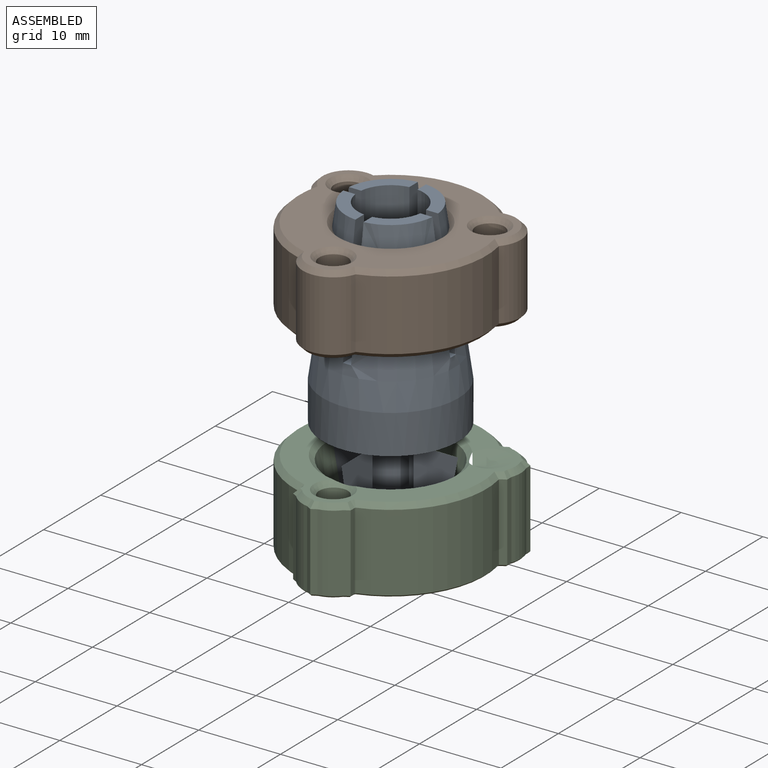
[diagram: assembled view]
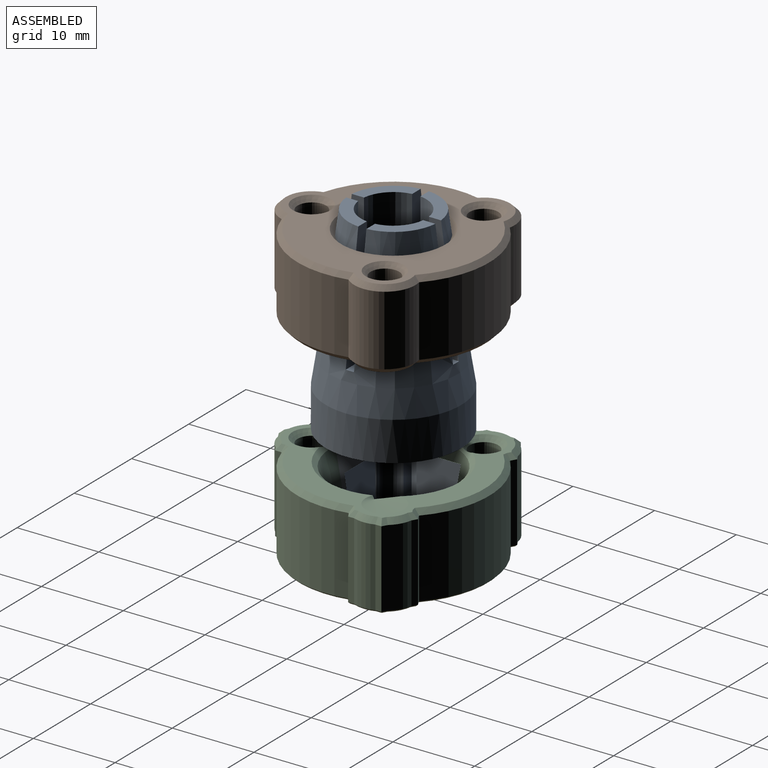
[diagram: assembled view, second angle]
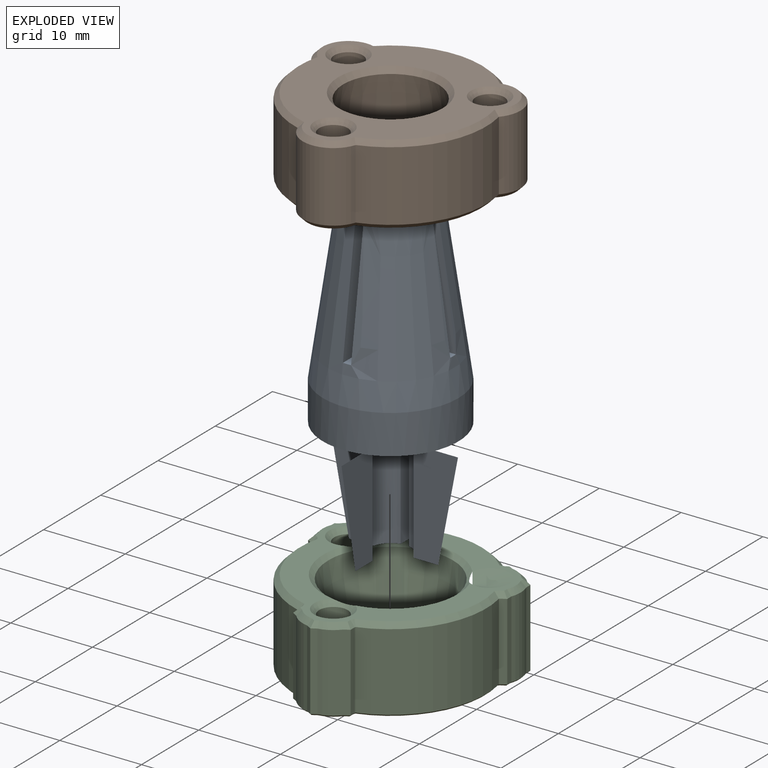
[diagram: exploded view]
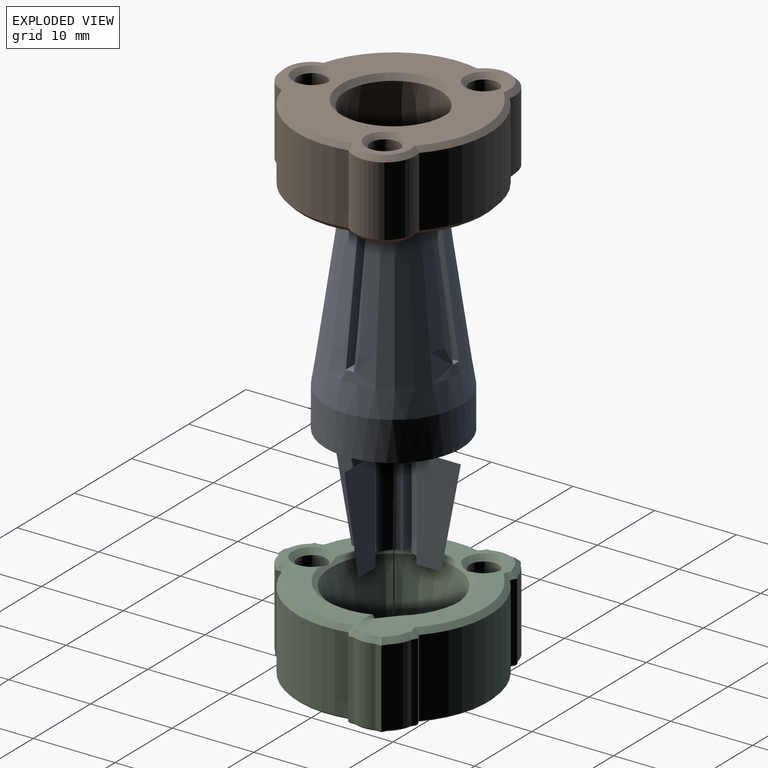
[diagram: exploded view, second angle]
ASSEMBLY  parts=3 mates=2
PART A: 40 faces, bbox 16.6x16.6x38.9 mm
  f0: plane 4.96x4.96mm, normal (0,0,-1), area 15.7mm2, adj f4,f5,f32,f38
  f1: plane 4.96x4.96mm, normal (0,0,-1), area 15.7mm2, adj f4,f5,f31,f35
  f2: plane 4.96x4.96mm, normal (0,0,-1), area 15.7mm2, adj f4,f5,f28,f37
  f3: plane 4.96x4.96mm, normal (0,0,-1), area 15.7mm2, adj f4,f5,f29,f34
  f4: cone r=8.3mm half-angle=10.9deg, axis (0,0,1), area 55.8mm2, adj f0,f1,f2,f3,f11,f28,f29,f30
  f5: cylinder r=2.5mm len=14.41mm, axis (0,0,-1), area 175.9mm2, adj f0,f1,f2,f3,f15,f28,f29,f30
  f6: cone r=5.48mm half-angle=8.2deg, axis (0,0,-1), area 789.9mm2, adj f7,f8,f9,f10,f11,f16,f17,f18
  f7: plane 4.96x4.96mm, normal (0,0,1), area 9.6mm2, adj f6,f12,f16,f25
  f8: plane 4.96x4.96mm, normal (0,0,1), area 9.6mm2, adj f6,f12,f17,f23
  f9: plane 4.96x4.96mm, normal (0,0,1), area 9.6mm2, adj f6,f12,f20,f26
  f10: plane 4.96x4.96mm, normal (0,0,1), area 9.6mm2, adj f6,f12,f19,f24
  f11: cylinder r=8.3mm len=16.6mm, axis (0,0,-1), area 249.6mm2, adj f4,f6
  f12: cylinder r=4mm len=19.47mm, axis (0,0,-1), area 429.1mm2, adj f7,f8,f9,f10,f13,f16,f17,f18
  f13: plane 8x8mm, normal (0,0,1), area 49.5mm2, adj f12,f14
  f14: cylinder r=0.5mm len=5mm, axis (0,0,-1), area 15.7mm2, adj f13,f15
  f15: plane 5x5mm, normal (0,0,-1), area 18.8mm2, adj f5,f14
  f16: plane 15.03x3.7mm, normal (0,1,0), area 38.7mm2, adj f6,f7,f12,f18
  f17: plane 15.03x3.7mm, normal (0,-1,0), area 38.7mm2, adj f6,f8,f12,f18
  f18: plane 3.69x1mm, normal (0,0,1), area 3.7mm2, adj f6,f12,f16,f17
  f19: plane 15.03x3.7mm, normal (0,-1,0), area 38.7mm2, adj f6,f10,f12,f21
  f20: plane 15.03x3.7mm, normal (0,1,0), area 38.7mm2, adj f6,f9,f12,f21
  f21: plane 3.69x1mm, normal (0,0,1), area 3.7mm2, adj f6,f12,f19,f20
  f22: plane 3.69x1mm, normal (0,0,1), area 3.7mm2, adj f6,f12,f23,f24
  f23: plane 15.03x3.7mm, normal (1,0,0), area 38.7mm2, adj f6,f8,f12,f22
  f24: plane 15.03x3.7mm, normal (-1,0,0), area 38.7mm2, adj f6,f10,f12,f22
  f25: plane 15.03x3.7mm, normal (1,0,0), area 38.7mm2, adj f6,f7,f12,f27
  f26: plane 15.03x3.7mm, normal (-1,0,0), area 38.7mm2, adj f6,f9,f12,f27
  f27: plane 3.69x1mm, normal (0,0,1), area 3.7mm2, adj f6,f12,f25,f26
  f28: plane 12.58x5.47mm, normal (-1,0,0), area 53mm2, adj f2,f4,f5,f30
  f29: plane 12.58x5.47mm, normal (1,0,0), area 53mm2, adj f3,f4,f5,f30
  f30: plane 5.45x1mm, normal (0,0,-1), area 5.4mm2, adj f4,f5,f28,f29
  f31: plane 12.58x5.47mm, normal (1,0,0), area 53mm2, adj f1,f4,f5,f33
  f32: plane 12.58x5.47mm, normal (-1,0,0), area 53mm2, adj f0,f4,f5,f33
  f33: plane 5.45x1mm, normal (0,0,-1), area 5.4mm2, adj f4,f5,f31,f32
  f34: plane 12.58x5.47mm, normal (0,1,0), area 53mm2, adj f3,f4,f5,f36
  f35: plane 12.58x5.47mm, normal (0,-1,0), area 53mm2, adj f1,f4,f5,f36
  f36: plane 5.45x1mm, normal (0,0,-1), area 5.4mm2, adj f4,f5,f34,f35
  f37: plane 12.58x5.47mm, normal (0,1,0), area 53mm2, adj f2,f4,f5,f39
  f38: plane 12.58x5.47mm, normal (0,-1,0), area 53mm2, adj f0,f4,f5,f39
  f39: plane 15.8x15.8mm, normal (0,0,-1), area 190.6mm2, adj f4,f5,f37,f38
PART B: 32 faces, bbox 24.8x25.5x9.7 mm
  f0: plane 24.34x23.67mm, normal (0,0,1), area 240.2mm2, adj f12,f13,f14,f15,f16,f17,f18,f19
  f1: cylinder r=11.75mm len=13.71mm, axis (0,0,-1), area 149.1mm2, adj f6,f10,f16,f26
  f2: cylinder r=11.75mm len=15.84mm, axis (0,0,-1), area 149.1mm2, adj f8,f10,f20,f30
  f3: plane 24.34x23.67mm, normal (0,0,-1), area 185.4mm2, adj f22,f23,f24,f25,f26,f27,f28,f29
  f4: cylinder r=11.75mm len=13.71mm, axis (0,0,-1), area 149.1mm2, adj f6,f8,f17,f27
  f5: cone r=7.14mm half-angle=8.2deg, axis (0,0,-1), area 351.4mm2, adj f21,f31
  f6: cylinder r=3.75mm len=8.58mm, axis (0,0,1), area 80.2mm2, adj f1,f4,f15,f25
  f7: cylinder r=1.75mm len=8.58mm, axis (0,0,1), area 94.3mm2, adj f14,f24
  f8: cylinder r=3.75mm len=8.58mm, axis (0,0,1), area 80.2mm2, adj f2,f4,f19,f29
  f9: cylinder r=1.75mm len=8.58mm, axis (0,0,1), area 94.3mm2, adj f13,f23
  f10: cylinder r=3.75mm len=8.58mm, axis (0,0,1), area 80.2mm2, adj f1,f2,f18,f28
  f11: cylinder r=1.75mm len=8.58mm, axis (0,0,1), area 94.3mm2, adj f12,f22
  f12: cone r=1.75mm half-angle=45deg, axis (0,0,1), area 10.5mm2, adj f0,f11
  f13: cone r=1.75mm half-angle=45deg, axis (0,0,1), area 10.5mm2, adj f0,f9
  f14: cone r=1.75mm half-angle=45deg, axis (0,0,1), area 10.5mm2, adj f0,f7
  f15: cone r=3.17mm half-angle=45deg, axis (0,0,-1), area 7.3mm2, adj f0,f6,f16,f17
  f16: cone r=11.75mm half-angle=45deg, axis (0,0,-1), area 14.1mm2, adj f0,f1,f15,f18
  f17: cone r=11.75mm half-angle=45deg, axis (0,0,-1), area 14.1mm2, adj f0,f4,f15,f19
  f18: cone r=3.17mm half-angle=45deg, axis (0,0,-1), area 7.3mm2, adj f0,f10,f16,f20
  f19: cone r=3.17mm half-angle=45deg, axis (0,0,-1), area 7.3mm2, adj f0,f8,f17,f20
  f20: cone r=11.75mm half-angle=45deg, axis (0,0,-1), area 14.1mm2, adj f0,f2,f18,f19
  f21: cone r=6.4mm half-angle=40.9deg, axis (0,0,1), area 33.6mm2, adj f0,f5
  f22: cone r=1.75mm half-angle=45deg, axis (0,0,-1), area 10.5mm2, adj f3,f11
  f23: cone r=1.75mm half-angle=45deg, axis (0,0,-1), area 10.5mm2, adj f3,f9
  f24: cone r=1.75mm half-angle=45deg, axis (0,0,-1), area 10.5mm2, adj f3,f7
  f25: cone r=3.17mm half-angle=45deg, axis (0,0,1), area 7.3mm2, adj f3,f6,f26,f27
  f26: cone r=11.17mm half-angle=45deg, axis (0,0,1), area 14.1mm2, adj f1,f3,f25,f28
  f27: cone r=11.17mm half-angle=45deg, axis (0,0,1), area 14.1mm2, adj f3,f4,f25,f29
  f28: cone r=3.17mm half-angle=45deg, axis (0,0,1), area 7.3mm2, adj f3,f10,f26,f30
  f29: cone r=3.17mm half-angle=45deg, axis (0,0,1), area 7.3mm2, adj f3,f8,f27,f30
  f30: cone r=11.17mm half-angle=45deg, axis (0,0,1), area 14.1mm2, adj f2,f3,f28,f29
  f31: cone r=7.07mm half-angle=49.1deg, axis (0,0,-1), area 35mm2, adj f3,f5
PART C: 155 faces, bbox 24.8x25.8x10.3 mm
  f0: cylinder r=1.75mm len=3.5mm, axis (0,0,-1), area 23.9mm2, adj f145,f152
  f1: cylinder r=1.75mm len=3.5mm, axis (0,0,-1), area 23.9mm2, adj f146,f154
  f2: cylinder r=1.75mm len=3.5mm, axis (0,0,-1), area 23.9mm2, adj f148,f150
  f3: plane 25.36x24.41mm, normal (0,0,-1), area 243.8mm2, adj f60,f61,f62,f63,f64,f65,f66,f67
  f4: cylinder r=3.75mm len=9.47mm, axis (0,0,-1), area 25.2mm2, adj f40,f45,f83,f122
  f5: cylinder r=3.75mm len=9.47mm, axis (0,0,-1), area 1.1mm2, adj f13,f42,f95,f134
  f6: cylinder r=3.75mm len=9.47mm, axis (0,0,-1), area 25.2mm2, adj f41,f43,f89,f128
  f7: cylinder r=3.75mm len=9.47mm, axis (0,0,-1), area 25.2mm2, adj f34,f39,f104,f144
  f8: cylinder r=3.75mm len=9.47mm, axis (0,0,-1), area 1.1mm2, adj f14,f36,f92,f133
  f9: cylinder r=3.75mm len=9.47mm, axis (0,0,-1), area 25.2mm2, adj f35,f37,f98,f139
  f10: cylinder r=3.75mm len=9.47mm, axis (0,0,-1), area 1.1mm2, adj f15,f25,f73,f112
  f11: cylinder r=3.75mm len=9.47mm, axis (0,0,-1), area 25.2mm2, adj f23,f26,f76,f117
  f12: cylinder r=3.75mm len=9.47mm, axis (0,0,-1), area 25.2mm2, adj f21,f24,f82,f123
  f13: cylinder r=11.75mm len=13.71mm, axis (0,0,-1), area 164.5mm2, adj f5,f20,f97,f136
  f14: cylinder r=11.75mm len=13.71mm, axis (0,0,-1), area 164.5mm2, adj f8,f19,f90,f131
  f15: cylinder r=11.75mm len=15.84mm, axis (0,0,-1), area 164.5mm2, adj f10,f18,f75,f114
  f16: plane 24.5x23.61mm, normal (0,0,1), area 157.5mm2, adj f112,f113,f114,f115,f116,f117,f118,f119
  f17: cone r=5.74mm half-angle=10.9deg, axis (0,0,1), area 409.3mm2, adj f111,f147
  f18: cylinder r=3.75mm len=9.47mm, axis (0,0,-1), area 1.1mm2, adj f15,f44,f77,f116
  f19: cylinder r=3.75mm len=9.47mm, axis (0,0,-1), area 1.1mm2, adj f14,f22,f88,f129
  f20: cylinder r=3.75mm len=9.47mm, axis (0,0,-1), area 1.1mm2, adj f13,f38,f99,f138
  f21: plane 9.47x0.73mm, normal (1,0,0), area 6.9mm2, adj f12,f22,f84,f125
  f22: plane 9.47x0.63mm, normal (0.5,-0.87,0), area 6.9mm2, adj f19,f21,f86,f127
  f23: plane 9.47x0.63mm, normal (0.5,0.87,0), area 6.9mm2, adj f11,f24,f78,f119
  f24: plane 9.47x0.73mm, normal (1,0,0), area 6.9mm2, adj f12,f23,f80,f121
  f25: plane 9.47x0.63mm, normal (-0.5,0.87,0), area 6.9mm2, adj f10,f26,f72,f113
  f26: plane 9.47x0.63mm, normal (0.5,0.87,0), area 6.9mm2, adj f11,f25,f74,f115
  f27: plane 2.8x2.29mm, normal (0.5,-0.87,0), area 7.4mm2, adj f28,f32,f33,f110
  f28: plane 2.8x2.29mm, normal (-0.5,-0.87,0), area 7.4mm2, adj f27,f29,f33,f108
  f29: plane 3.23x2.29mm, normal (-1,0,0), area 7.4mm2, adj f28,f30,f33,f106
  f30: plane 2.8x2.29mm, normal (-0.5,0.87,0), area 7.4mm2, adj f29,f31,f33,f105
  f31: plane 2.8x2.29mm, normal (0.5,0.87,0), area 7.4mm2, adj f30,f32,f33,f107
  f32: plane 3.23x2.29mm, normal (1,0,0), area 7.4mm2, adj f27,f31,f33,f109
  f33: plane 6.47x5.6mm, normal (0,0,-1), area 7.5mm2, adj f27,f28,f29,f30,f31,f32,f153
  f34: plane 9.47x0.63mm, normal (-0.5,-0.87,0), area 6.9mm2, adj f7,f35,f102,f143
  f35: plane 9.47x0.63mm, normal (0.5,-0.87,0), area 6.9mm2, adj f9,f34,f100,f141
  f36: plane 9.47x0.73mm, normal (1,0,0), area 6.9mm2, adj f8,f37,f94,f135
  f37: plane 9.47x0.63mm, normal (0.5,-0.87,0), area 6.9mm2, adj f9,f36,f96,f137
  f38: plane 9.47x0.73mm, normal (-1,0,0), area 6.9mm2, adj f20,f39,f101,f140
  f39: plane 9.47x0.63mm, normal (-0.5,-0.87,0), area 6.9mm2, adj f7,f38,f103,f142
  f40: plane 9.47x0.63mm, normal (-0.5,0.87,0), area 6.9mm2, adj f4,f41,f85,f124
  f41: plane 9.47x0.73mm, normal (-1,0,0), area 6.9mm2, adj f6,f40,f87,f126
  f42: plane 9.47x0.63mm, normal (-0.5,-0.87,0), area 6.9mm2, adj f5,f43,f93,f132
  f43: plane 9.47x0.73mm, normal (-1,0,0), area 6.9mm2, adj f6,f42,f91,f130
  f44: plane 9.47x0.63mm, normal (0.5,0.87,0), area 6.9mm2, adj f18,f45,f79,f118
  f45: plane 9.47x0.63mm, normal (-0.5,0.87,0), area 6.9mm2, adj f4,f44,f81,f120
  f46: plane 2.8x2.29mm, normal (0.5,-0.87,0), area 7.4mm2, adj f47,f51,f52,f65
  f47: plane 2.8x2.29mm, normal (-0.5,-0.87,0), area 7.4mm2, adj f46,f48,f52,f63
  f48: plane 3.23x2.29mm, normal (-1,0,0), area 7.4mm2, adj f47,f49,f52,f61
  f49: plane 2.8x2.29mm, normal (-0.5,0.87,0), area 7.4mm2, adj f48,f50,f52,f60
  f50: plane 2.8x2.29mm, normal (0.5,0.87,0), area 7.4mm2, adj f49,f51,f52,f62
  f51: plane 3.23x2.29mm, normal (1,0,0), area 7.4mm2, adj f46,f50,f52,f64
  f52: plane 6.47x5.6mm, normal (0,0,-1), area 7.5mm2, adj f46,f47,f48,f49,f50,f51,f151
  f53: plane 2.8x2.29mm, normal (0.5,0.87,0), area 7.4mm2, adj f54,f58,f59,f71
  f54: plane 3.23x2.29mm, normal (1,0,0), area 7.4mm2, adj f53,f55,f59,f69
  f55: plane 2.8x2.29mm, normal (0.5,-0.87,0), area 7.4mm2, adj f54,f56,f59,f67
  f56: plane 2.8x2.29mm, normal (-0.5,-0.87,0), area 7.4mm2, adj f55,f57,f59,f66
  f57: plane 3.23x2.29mm, normal (-1,0,0), area 7.4mm2, adj f56,f58,f59,f68
  f58: plane 2.8x2.29mm, normal (-0.5,0.87,0), area 7.4mm2, adj f53,f57,f59,f70
  f59: plane 6.47x5.6mm, normal (0,0,-1), area 7.5mm2, adj f53,f54,f55,f56,f57,f58,f149
  f60: plane 3.01x1.86mm, normal (-0.35,0.61,-0.71), area 1mm2, adj f3,f49,f61,f62
  f61: plane 3.47x0.21mm, normal (-0.71,0,-0.71), area 1mm2, adj f3,f48,f60,f63
  f62: plane 3.01x1.86mm, normal (0.35,0.61,-0.71), area 1mm2, adj f3,f50,f60,f64
  f63: plane 3.01x1.86mm, normal (-0.35,-0.61,-0.71), area 1mm2, adj f3,f47,f61,f65
  f64: plane 3.47x0.21mm, normal (0.71,0,-0.71), area 1mm2, adj f3,f51,f62,f65
  f65: plane 3.01x1.86mm, normal (0.35,-0.61,-0.71), area 1mm2, adj f3,f46,f63,f64
  f66: plane 3.01x1.86mm, normal (-0.35,-0.61,-0.71), area 1mm2, adj f3,f56,f67,f68
  f67: plane 3.01x1.86mm, normal (0.35,-0.61,-0.71), area 1mm2, adj f3,f55,f66,f69
  f68: plane 3.47x0.21mm, normal (-0.71,0,-0.71), area 1mm2, adj f3,f57,f66,f70
  f69: plane 3.47x0.21mm, normal (0.71,0,-0.71), area 1mm2, adj f3,f54,f67,f71
  f70: plane 3.01x1.86mm, normal (-0.35,0.61,-0.71), area 1mm2, adj f3,f58,f68,f71
  f71: plane 3.01x1.86mm, normal (0.35,0.61,-0.71), area 1mm2, adj f3,f53,f69,f70
  f72: plane 0.63x0.56mm, normal (-0.35,0.61,-0.71), area 0.2mm2, adj f3,f25,f73,f74
  f73: cone r=3.54mm half-angle=45deg, axis (0,0,1), area 0.1mm2, adj f3,f10,f72,f75
  f74: plane 0.63x0.56mm, normal (0.35,0.61,-0.71), area 0.2mm2, adj f3,f26,f72,f76
  f75: cone r=11.54mm half-angle=45deg, axis (0,0,1), area 5.1mm2, adj f3,f15,f73,f77
  f76: cone r=3.54mm half-angle=45deg, axis (0,0,1), area 0.8mm2, adj f3,f11,f74,f78
  f77: cone r=3.54mm half-angle=45deg, axis (0,0,1), area 0.1mm2, adj f3,f18,f75,f79
  f78: plane 0.76x0.48mm, normal (0.35,0.61,-0.71), area 0.2mm2, adj f3,f23,f76,f80
  f79: plane 0.63x0.56mm, normal (0.35,0.61,-0.71), area 0.2mm2, adj f3,f44,f77,f81
  f80: plane 0.76x0.21mm, normal (0.71,0,-0.71), area 0.2mm2, adj f3,f24,f78,f82
  f81: plane 0.63x0.56mm, normal (-0.35,0.61,-0.71), area 0.2mm2, adj f3,f45,f79,f83
  f82: cone r=3.54mm half-angle=45deg, axis (0,0,1), area 0.8mm2, adj f3,f12,f80,f84
  f83: cone r=3.54mm half-angle=45deg, axis (0,0,1), area 0.8mm2, adj f3,f4,f81,f85
  f84: plane 0.76x0.21mm, normal (0.71,0,-0.71), area 0.2mm2, adj f3,f21,f82,f86
  f85: plane 0.76x0.48mm, normal (-0.35,0.61,-0.71), area 0.2mm2, adj f3,f40,f83,f87
  f86: plane 0.76x0.48mm, normal (0.35,-0.61,-0.71), area 0.2mm2, adj f3,f22,f84,f88
  f87: plane 0.76x0.21mm, normal (-0.71,0,-0.71), area 0.2mm2, adj f3,f41,f85,f89
  f88: cone r=3.54mm half-angle=45deg, axis (0,0,1), area 0.1mm2, adj f3,f19,f86,f90
  f89: cone r=3.54mm half-angle=45deg, axis (0,0,1), area 0.8mm2, adj f3,f6,f87,f91
  f90: cone r=11.54mm half-angle=45deg, axis (0,0,1), area 5.1mm2, adj f3,f14,f88,f92
  f91: plane 0.76x0.21mm, normal (-0.71,0,-0.71), area 0.2mm2, adj f3,f43,f89,f93
  f92: cone r=3.54mm half-angle=45deg, axis (0,0,1), area 0.1mm2, adj f3,f8,f90,f94
  f93: plane 0.76x0.48mm, normal (-0.35,-0.61,-0.71), area 0.2mm2, adj f3,f42,f91,f95
  f94: plane 0.76x0.21mm, normal (0.71,0,-0.71), area 0.2mm2, adj f3,f36,f92,f96
  f95: cone r=3.54mm half-angle=45deg, axis (0,0,1), area 0.1mm2, adj f3,f5,f93,f97
  f96: plane 0.76x0.48mm, normal (0.35,-0.61,-0.71), area 0.2mm2, adj f3,f37,f94,f98
  f97: cone r=11.54mm half-angle=45deg, axis (0,0,1), area 5.1mm2, adj f3,f13,f95,f99
  f98: cone r=3.54mm half-angle=45deg, axis (0,0,1), area 0.8mm2, adj f3,f9,f96,f100
  f99: cone r=3.54mm half-angle=45deg, axis (0,0,1), area 0.1mm2, adj f3,f20,f97,f101
  f100: plane 0.63x0.56mm, normal (0.35,-0.61,-0.71), area 0.2mm2, adj f3,f35,f98,f102
  f101: plane 0.76x0.21mm, normal (-0.71,0,-0.71), area 0.2mm2, adj f3,f38,f99,f103
  f102: plane 0.63x0.56mm, normal (-0.35,-0.61,-0.71), area 0.2mm2, adj f3,f34,f100,f104
  f103: plane 0.76x0.48mm, normal (-0.35,-0.61,-0.71), area 0.2mm2, adj f3,f39,f101,f104
  f104: cone r=3.54mm half-angle=45deg, axis (0,0,1), area 0.8mm2, adj f3,f7,f102,f103
  f105: plane 3.01x1.86mm, normal (-0.35,0.61,-0.71), area 1mm2, adj f3,f30,f106,f107
  f106: plane 3.47x0.21mm, normal (-0.71,0,-0.71), area 1mm2, adj f3,f29,f105,f108
  f107: plane 3.01x1.86mm, normal (0.35,0.61,-0.71), area 1mm2, adj f3,f31,f105,f109
  f108: plane 3.01x1.86mm, normal (-0.35,-0.61,-0.71), area 1mm2, adj f3,f28,f106,f110
  f109: plane 3.47x0.21mm, normal (0.71,0,-0.71), area 1mm2, adj f3,f32,f107,f110
  f110: plane 3.01x1.86mm, normal (0.35,-0.61,-0.71), area 1mm2, adj f3,f27,f108,f109
  f111: cone r=5.78mm half-angle=39.5deg, axis (0,0,-1), area 11.8mm2, adj f3,f17
  f112: cone r=3.14mm half-angle=45deg, axis (0,0,-1), area 0.3mm2, adj f10,f16,f113,f114
  f113: plane 0.95x0.64mm, normal (-0.35,0.61,0.71), area 0.5mm2, adj f16,f25,f112,f115
  f114: cone r=11.75mm half-angle=45deg, axis (0,0,-1), area 14.8mm2, adj f15,f16,f112,f116
  f115: plane 0.95x0.64mm, normal (0.35,0.61,0.71), area 0.5mm2, adj f16,f26,f113,f117
  f116: cone r=3.14mm half-angle=45deg, axis (0,0,-1), area 0.3mm2, adj f16,f18,f114,f118
  f117: cone r=3.14mm half-angle=45deg, axis (0,0,-1), area 2.2mm2, adj f11,f16,f115,f119
  f118: plane 0.95x0.64mm, normal (0.35,0.61,0.71), area 0.5mm2, adj f16,f44,f116,f120
  f119: plane 1.04x0.72mm, normal (0.35,0.61,0.71), area 0.5mm2, adj f16,f23,f117,f121
  f120: plane 0.95x0.64mm, normal (-0.35,0.61,0.71), area 0.5mm2, adj f16,f45,f118,f122
  f121: plane 0.85x0.61mm, normal (0.71,0,0.71), area 0.5mm2, adj f16,f24,f119,f123
  f122: cone r=3.14mm half-angle=45deg, axis (0,0,-1), area 2.2mm2, adj f4,f16,f120,f124
  f123: cone r=3.14mm half-angle=45deg, axis (0,0,-1), area 2.2mm2, adj f12,f16,f121,f125
  f124: plane 1.04x0.72mm, normal (-0.35,0.61,0.71), area 0.5mm2, adj f16,f40,f122,f126
  f125: plane 0.85x0.61mm, normal (0.71,0,0.71), area 0.5mm2, adj f16,f21,f123,f127
  f126: plane 0.85x0.61mm, normal (-0.71,0,0.71), area 0.5mm2, adj f16,f41,f124,f128
  f127: plane 1.04x0.72mm, normal (0.35,-0.61,0.71), area 0.5mm2, adj f16,f22,f125,f129
  f128: cone r=3.14mm half-angle=45deg, axis (0,0,-1), area 2.2mm2, adj f6,f16,f126,f130
  f129: cone r=3.14mm half-angle=45deg, axis (0,0,-1), area 0.3mm2, adj f16,f19,f127,f131
  f130: plane 0.85x0.61mm, normal (-0.71,0,0.71), area 0.5mm2, adj f16,f43,f128,f132
  f131: cone r=11.75mm half-angle=45deg, axis (0,0,-1), area 14.8mm2, adj f14,f16,f129,f133
  f132: plane 1.04x0.72mm, normal (-0.35,-0.61,0.71), area 0.5mm2, adj f16,f42,f130,f134
  f133: cone r=3.14mm half-angle=45deg, axis (0,0,-1), area 0.3mm2, adj f8,f16,f131,f135
  f134: cone r=3.14mm half-angle=45deg, axis (0,0,-1), area 0.3mm2, adj f5,f16,f132,f136
  f135: plane 0.85x0.61mm, normal (0.71,0,0.71), area 0.5mm2, adj f16,f36,f133,f137
  f136: cone r=11.75mm half-angle=45deg, axis (0,0,-1), area 14.8mm2, adj f13,f16,f134,f138
  f137: plane 1.04x0.72mm, normal (0.35,-0.61,0.71), area 0.5mm2, adj f16,f37,f135,f139
  f138: cone r=3.14mm half-angle=45deg, axis (0,0,-1), area 0.3mm2, adj f16,f20,f136,f140
  f139: cone r=3.14mm half-angle=45deg, axis (0,0,-1), area 2.2mm2, adj f9,f16,f137,f141
  f140: plane 0.85x0.61mm, normal (-0.71,0,0.71), area 0.5mm2, adj f16,f38,f138,f142
  f141: plane 0.95x0.64mm, normal (0.35,-0.61,0.71), area 0.5mm2, adj f16,f35,f139,f143
  f142: plane 1.04x0.72mm, normal (-0.35,-0.61,0.71), area 0.5mm2, adj f16,f39,f140,f144
  f143: plane 0.95x0.64mm, normal (-0.35,-0.61,0.71), area 0.5mm2, adj f16,f34,f141,f144
  f144: cone r=3.14mm half-angle=45deg, axis (0,0,-1), area 2.2mm2, adj f7,f16,f142,f143
  f145: cone r=1.75mm half-angle=45deg, axis (0,0,1), area 10.3mm2, adj f0,f16,f147
  f146: cone r=1.75mm half-angle=45deg, axis (0,0,1), area 10.3mm2, adj f1,f16,f147
  f147: cone r=8.22mm half-angle=50.5deg, axis (0,0,1), area 36.1mm2, adj f16,f17,f145,f146,f148
  f148: cone r=1.75mm half-angle=45deg, axis (0,0,1), area 10.3mm2, adj f2,f16,f147
  f149: cylinder r=2.5mm len=5mm, axis (0,0,-1), area 78.5mm2, adj f59,f150
  f150: plane 5x5mm, normal (0,0,-1), area 10mm2, adj f2,f149
  f151: cylinder r=2.5mm len=5mm, axis (0,0,-1), area 78.5mm2, adj f52,f152
  f152: plane 5x5mm, normal (0,0,-1), area 10mm2, adj f0,f151
  f153: cylinder r=2.5mm len=5mm, axis (0,0,-1), area 78.5mm2, adj f33,f154
  f154: plane 5x5mm, normal (0,0,-1), area 10mm2, adj f1,f153
PLACE A t=(-11.79,-32.83,13.76)mm
PLACE B t=(-11.79,-32.83,11.56)mm
PLACE C rot(axis=(0,0,1),0deg) t=(-11.79,-32.83,14.39)mm
MATE slider B.f1 <-> A.f4  axis (0,0,1) through (-11.79,-28.17,23.24)mm
MATE slider C.f13 <-> A.f4  axis (0,0,-1) through (-11.79,-28.17,-12.81)mm
